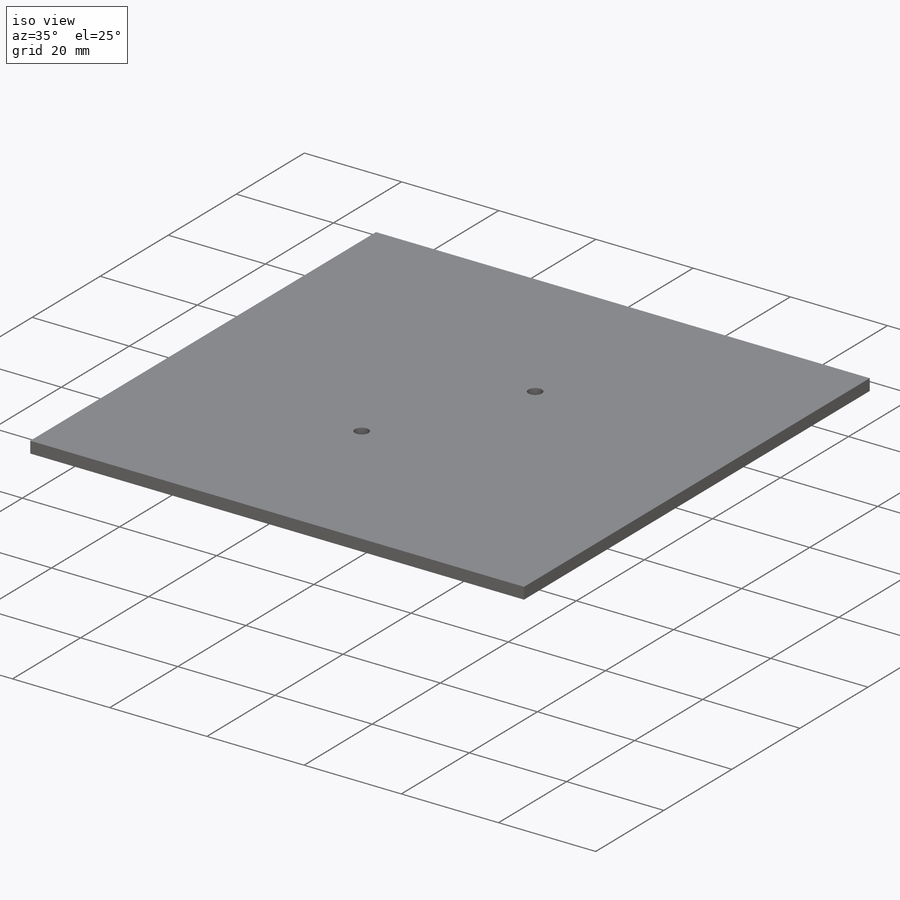
[diagram: iso view]
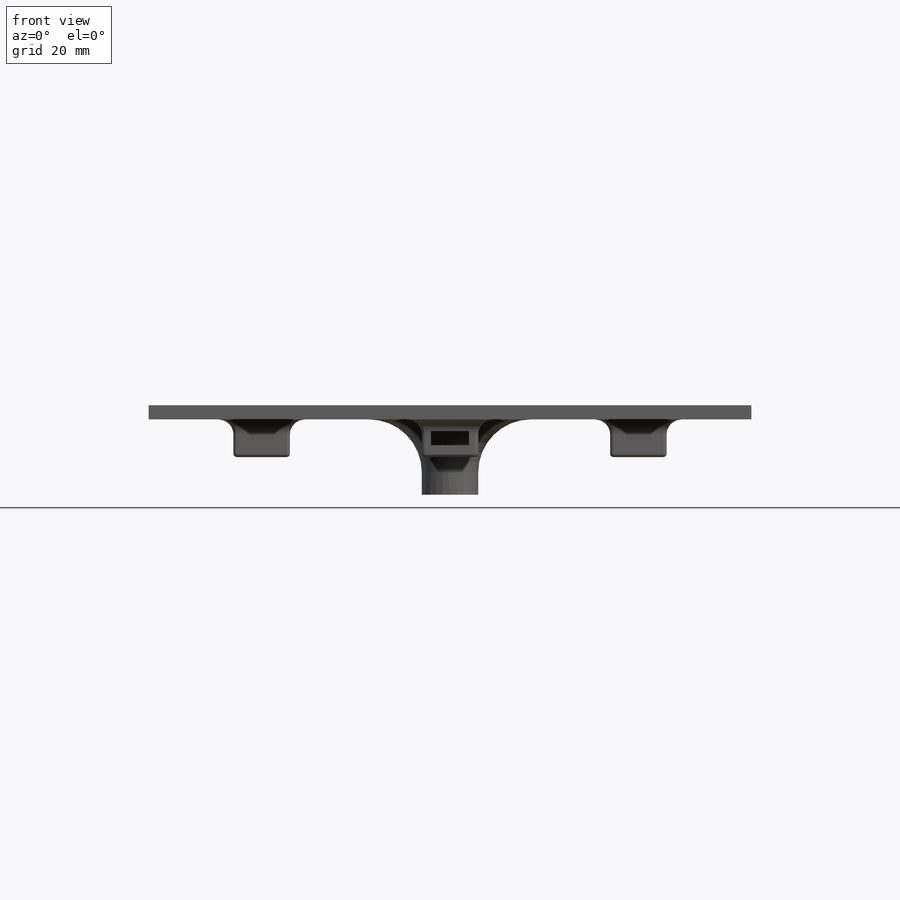
[diagram: front view]
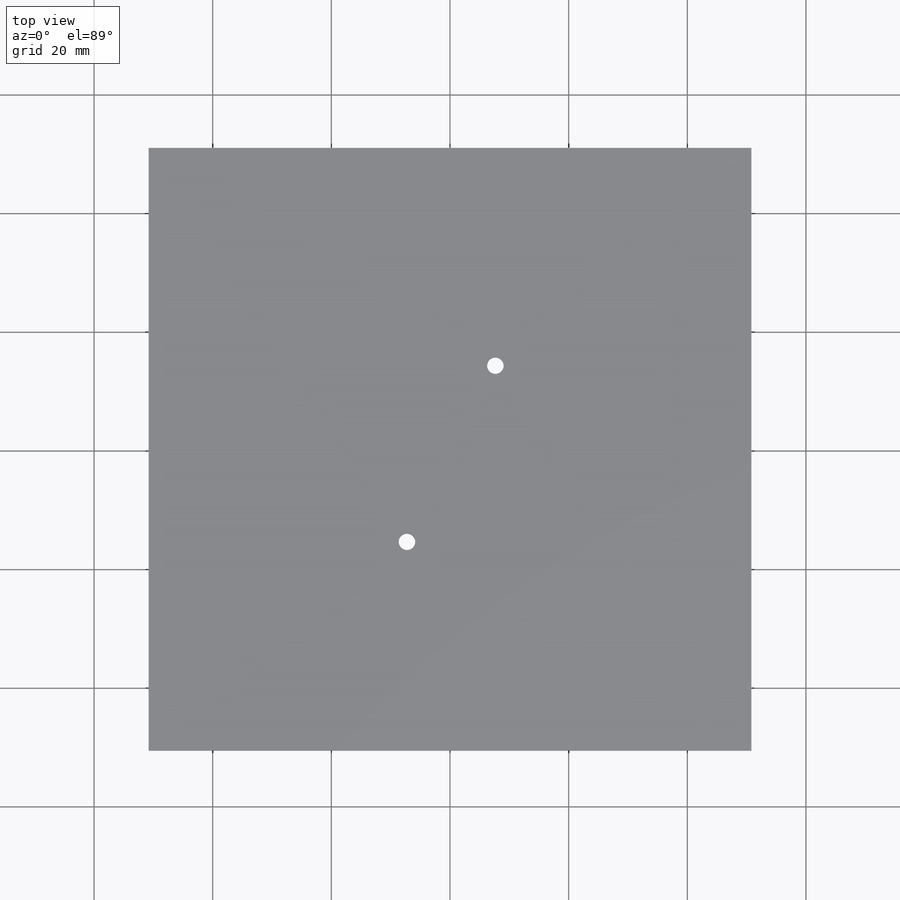
[diagram: top view]
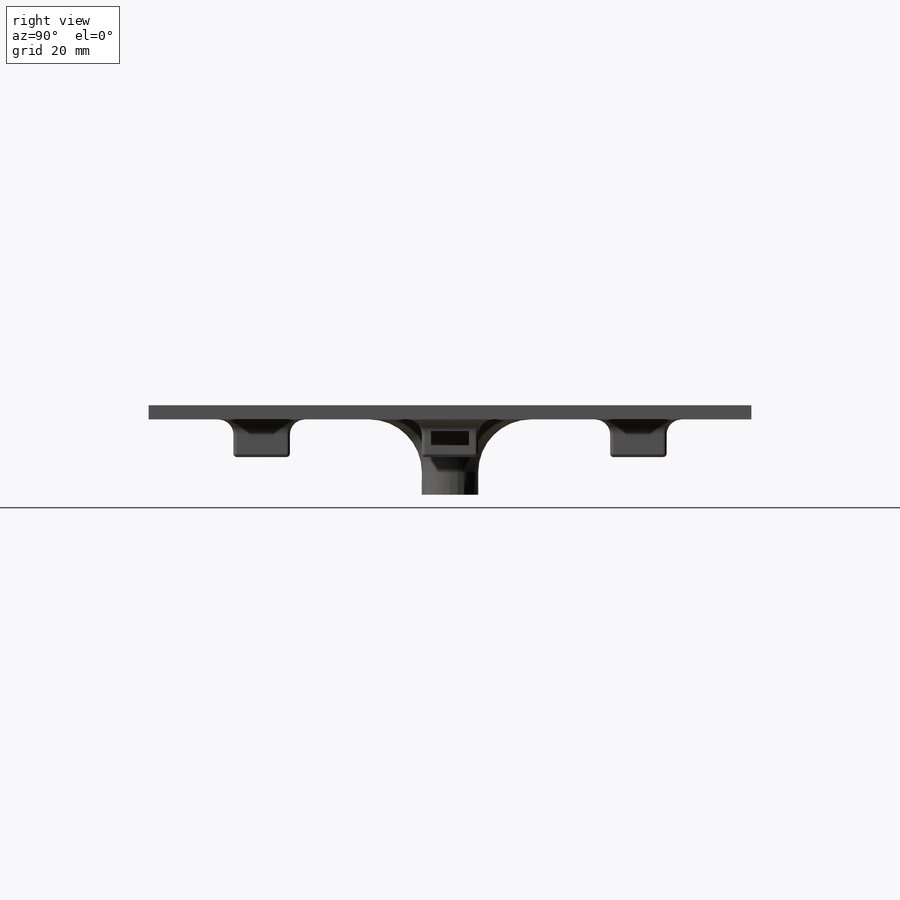
[diagram: right view]
SOLIDWORKS PART (.sldprt)
format: sldprt  version: not decoded by parser v0  size: 475,136 bytes
history: native  units: mm
features: sketch x8, extrude x3, fillet x3, hole x2, material x1, cut_extrude x1, pattern_circular x1 (+13 scaffold rows collapsed)
feature tree (32):
  scaffold x13  (default folders/planes/origin — collapsed)
  material  "ABS"
  sketch  "Sketch1"  dims[c1.D1=101.6mm c1.D2=101.6mm c2.D1=~0.79375mm]
  extrude  "Boss-Extrude1"  Depth=2.38125mm
  sketch  "Sketch2"  dims[D1=9.525mm D2=9.525mm D3=31.75mm D4=9.525mm]
  extrude  "Boss-Extrude2"  Depth=6.35mm
  sketch  "Sketch3"  dims[c1.D1=6.35mm c1.D2=~2.38125mm c2.D1=~0.79375mm]
  cut_extrude  "Cut-Extrude1"  [1 undecoded]
  fillet  "Fillet1"  Radius=2.54mm
  fillet  "Fillet2"  Radius=0.5842mm
  pattern_circular  "CirPattern1"  Count=4 Angle=90deg
  hole  "Ø2.5mm Dowel Hole1"  Diameter=2.794mm Depth=2.38125mm
  sketch  "Sketch4"
  sketch  "Sketch5"  dims[Thru Hole Dia.=2.794mm Thru Hole Depth=~2.38125mm]
  sketch  "Sketch6"  dims[D1=9.525mm]
  extrude  "Boss-Extrude3"  Depth=12.7mm
  fillet  "Fillet3"  Radius=8.89mm
  hole  "5/32 (0.15625) Diameter Hole1"  Diameter=3.96875mm Depth=9.525mm
  sketch  "Sketch8"
  sketch  "Sketch7"  dims[hole-wizard template sketch: 47 standard entries collapsed; hole parameters kept: c15.Hole Depth=9.525mm c15.D3=~14.816244mm c15.Drill Angle=118.0deg]
decode coverage: 15 of 18 modeling features carry decoded parameters
note: ~ marks probable driven/reference dimensions
note: 1 parameter value undecoded
note: suppression state not decoded; provenance and decode notes live in map.json
